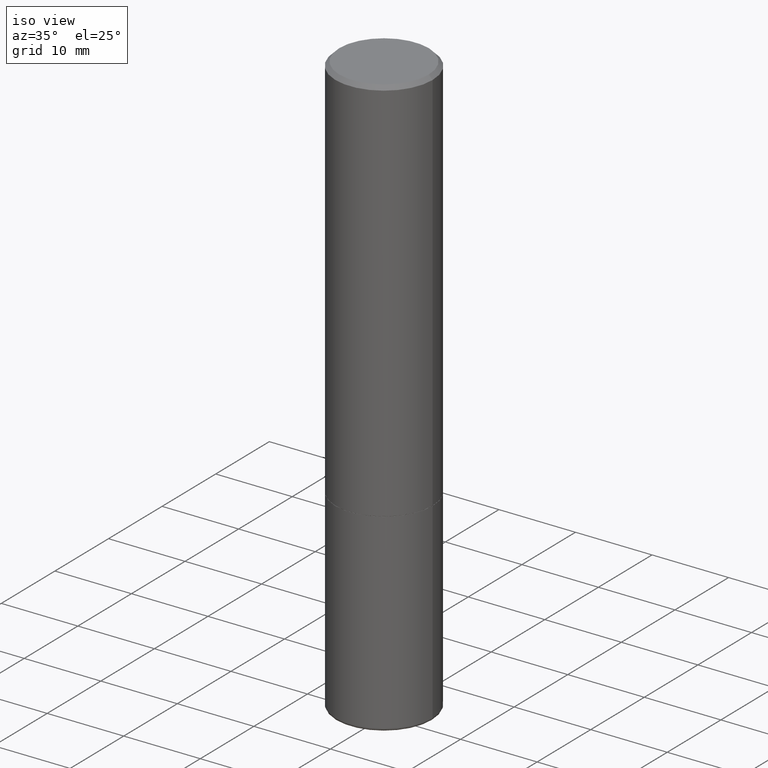
[diagram: clean part render]
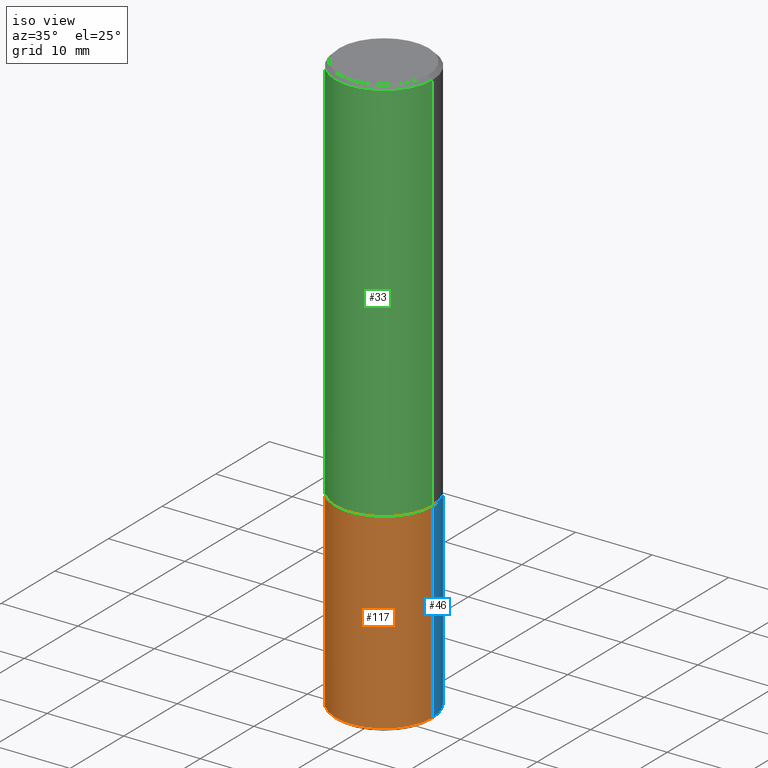
[diagram: same view with three faces highlighted in distinct colors, each labeled with its STEP entity id]
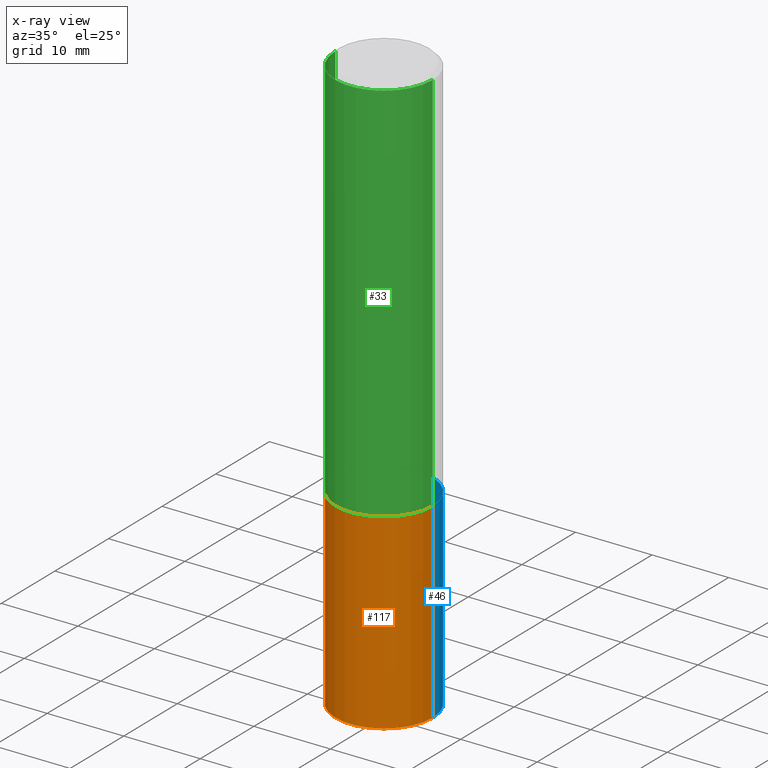
[diagram: x-ray of the same camera — body ghosted, the three highlighted faces saturated]
A machine part, iso view with three faces highlighted in distinct colors.
The next image is the same camera in x-ray (body ghosted, the three faces saturated) — at least one of them is partly hidden behind the body in this view.
Their STEP definitions:

[orange] entity #117 — the highlighted cylindrical surface (partial cylindrical patch) has radius 6.35 mm, axis along (-0, 0, 1).
#2 = CARTESIAN_POINT ( 'NONE',  ( -0.2500000000000000000, 1.776356839400250465E-15, -1.229733772563726445E-29 ) ) ;
#3 = ORIENTED_EDGE ( 'NONE', *, *, #424, .F. ) ;
#5 = VECTOR ( 'NONE', #108, 39.37007874015748143 ) ;
#18 = CARTESIAN_POINT ( 'NONE',  ( 0.000000000000000000, 0.000000000000000000, 0.000000000000000000 ) ) ;
#32 = VERTEX_POINT ( 'NONE', #282 ) ;
#45 = VERTEX_POINT ( 'NONE', #435 ) ;
#60 = CYLINDRICAL_SURFACE ( 'NONE', #219, 0.2500000000000000000 ) ;
#62 = DIRECTION ( 'NONE',  ( 1.000000000000000000, -6.982962677686270655E-15, 0.000000000000000000 ) ) ;
#73 = EDGE_CURVE ( 'NONE', #32, #348, #148, .T. ) ;
#82 = ORIENTED_EDGE ( 'NONE', *, *, #361, .F. ) ;
#104 = VERTEX_POINT ( 'NONE', #396 ) ;
#108 = DIRECTION ( 'NONE',  ( -2.445468806185136877E-29, 3.491481338843145188E-15, 1.000000000000000000 ) ) ;
#117 = ADVANCED_FACE ( 'NONE', ( #399 ), #60, .T. ) ;
#130 = DIRECTION ( 'NONE',  ( -2.445468806185136877E-29, 3.491481338843145188E-15, 1.000000000000000000 ) ) ;
#146 = EDGE_CURVE ( 'NONE', #348, #45, #188, .T. ) ;
#148 = CIRCLE ( 'NONE', #189, 0.2500000000000000000 ) ;
#152 = DIRECTION ( 'NONE',  ( 1.000000000000000000, -6.982962677686266711E-15, 0.000000000000000000 ) ) ;
#188 = LINE ( 'NONE', #259, #5 ) ;
#189 = AXIS2_PLACEMENT_3D ( 'NONE', #327, #240, #62 ) ;
#214 = ORIENTED_EDGE ( 'NONE', *, *, #146, .T. ) ;
#219 = AXIS2_PLACEMENT_3D ( 'NONE', #18, #398, #324 ) ;
#228 = AXIS2_PLACEMENT_3D ( 'NONE', #379, #432, #152 ) ;
#240 = DIRECTION ( 'NONE',  ( -2.445468806185136597E-29, 3.491481338843145583E-15, 1.000000000000000000 ) ) ;
#259 = CARTESIAN_POINT ( 'NONE',  ( 0.2500000000000000000, -1.745740669421566678E-15, 1.219044193948983948E-29 ) ) ;
#282 = CARTESIAN_POINT ( 'NONE',  ( -0.2500000000000000000, -6.926161394753122296E-15, -2.985000571154037718 ) ) ;
#305 = EDGE_LOOP ( 'NONE', ( #82, #337, #214, #3 ) ) ;
#318 = LINE ( 'NONE', #2, #420 ) ;
#324 = DIRECTION ( 'NONE',  ( 1.000000000000000000, -6.982962677686266711E-15, 4.876176775795935793E-29 ) ) ;
#327 = CARTESIAN_POINT ( 'NONE',  ( 7.299725783202014843E-29, -1.042207379062045357E-14, -2.985000571154037718 ) ) ;
#337 = ORIENTED_EDGE ( 'NONE', *, *, #73, .T. ) ;
#341 = CARTESIAN_POINT ( 'NONE',  ( 0.2500000000000000000, -1.216781446004202182E-14, -2.985000571154037718 ) ) ;
#348 = VERTEX_POINT ( 'NONE', #341 ) ;
#361 = EDGE_CURVE ( 'NONE', #32, #104, #318, .T. ) ;
#379 = CARTESIAN_POINT ( 'NONE',  ( 4.890937612370273754E-29, -6.982962677686291954E-15, -2.000000000000000444 ) ) ;
#396 = CARTESIAN_POINT ( 'NONE',  ( -0.2500000000000000000, -6.926161394753122296E-15, -2.000000000000000444 ) ) ;
#398 = DIRECTION ( 'NONE',  ( -2.445468806185136597E-29, 3.491481338843145583E-15, 1.000000000000000000 ) ) ;
#399 = FACE_OUTER_BOUND ( 'NONE', #305, .T. ) ;
#420 = VECTOR ( 'NONE', #130, 39.37007874015748143 ) ;
#424 = EDGE_CURVE ( 'NONE', #104, #45, #439, .T. ) ;
#432 = DIRECTION ( 'NONE',  ( -2.445468806185136597E-29, 3.491481338843145583E-15, 1.000000000000000000 ) ) ;
#435 = CARTESIAN_POINT ( 'NONE',  ( 0.2500000000000000000, -8.728703347107858632E-15, -2.000000000000000444 ) ) ;
#439 = CIRCLE ( 'NONE', #228, 0.2500000000000000000 ) ;

[blue] entity #46 — the highlighted cylindrical surface (partial cylindrical patch) has radius 6.35 mm, axis along (-0, 0, 1).
#2 = CARTESIAN_POINT ( 'NONE',  ( -0.2500000000000000000, 1.776356839400250465E-15, -1.229733772563726445E-29 ) ) ;
#5 = VECTOR ( 'NONE', #108, 39.37007874015748143 ) ;
#11 = AXIS2_PLACEMENT_3D ( 'NONE', #99, #437, #215 ) ;
#14 = EDGE_LOOP ( 'NONE', ( #334, #271, #75, #232 ) ) ;
#32 = VERTEX_POINT ( 'NONE', #282 ) ;
#45 = VERTEX_POINT ( 'NONE', #435 ) ;
#46 = ADVANCED_FACE ( 'NONE', ( #90 ), #94, .T. ) ;
#49 = DIRECTION ( 'NONE',  ( 1.000000000000000000, -6.982962677686270655E-15, 0.000000000000000000 ) ) ;
#51 = AXIS2_PLACEMENT_3D ( 'NONE', #469, #209, #49 ) ;
#70 = CARTESIAN_POINT ( 'NONE',  ( 4.890937612370273754E-29, -6.982962677686291954E-15, -2.000000000000000444 ) ) ;
#75 = ORIENTED_EDGE ( 'NONE', *, *, #191, .F. ) ;
#90 = FACE_OUTER_BOUND ( 'NONE', #14, .T. ) ;
#94 = CYLINDRICAL_SURFACE ( 'NONE', #11, 0.2500000000000000000 ) ;
#99 = CARTESIAN_POINT ( 'NONE',  ( 0.000000000000000000, 0.000000000000000000, 0.000000000000000000 ) ) ;
#104 = VERTEX_POINT ( 'NONE', #396 ) ;
#108 = DIRECTION ( 'NONE',  ( -2.445468806185136877E-29, 3.491481338843145188E-15, 1.000000000000000000 ) ) ;
#130 = DIRECTION ( 'NONE',  ( -2.445468806185136877E-29, 3.491481338843145188E-15, 1.000000000000000000 ) ) ;
#146 = EDGE_CURVE ( 'NONE', #348, #45, #188, .T. ) ;
#178 = AXIS2_PLACEMENT_3D ( 'NONE', #70, #294, #377 ) ;
#188 = LINE ( 'NONE', #259, #5 ) ;
#191 = EDGE_CURVE ( 'NONE', #45, #104, #344, .T. ) ;
#209 = DIRECTION ( 'NONE',  ( -2.445468806185136597E-29, 3.491481338843145583E-15, 1.000000000000000000 ) ) ;
#215 = DIRECTION ( 'NONE',  ( 1.000000000000000000, -6.982962677686266711E-15, 4.876176775795935793E-29 ) ) ;
#232 = ORIENTED_EDGE ( 'NONE', *, *, #146, .F. ) ;
#259 = CARTESIAN_POINT ( 'NONE',  ( 0.2500000000000000000, -1.745740669421566678E-15, 1.219044193948983948E-29 ) ) ;
#271 = ORIENTED_EDGE ( 'NONE', *, *, #361, .T. ) ;
#282 = CARTESIAN_POINT ( 'NONE',  ( -0.2500000000000000000, -6.926161394753122296E-15, -2.985000571154037718 ) ) ;
#294 = DIRECTION ( 'NONE',  ( -2.445468806185136597E-29, 3.491481338843145583E-15, 1.000000000000000000 ) ) ;
#318 = LINE ( 'NONE', #2, #420 ) ;
#334 = ORIENTED_EDGE ( 'NONE', *, *, #378, .T. ) ;
#341 = CARTESIAN_POINT ( 'NONE',  ( 0.2500000000000000000, -1.216781446004202182E-14, -2.985000571154037718 ) ) ;
#344 = CIRCLE ( 'NONE', #178, 0.2500000000000000000 ) ;
#348 = VERTEX_POINT ( 'NONE', #341 ) ;
#361 = EDGE_CURVE ( 'NONE', #32, #104, #318, .T. ) ;
#377 = DIRECTION ( 'NONE',  ( 1.000000000000000000, -6.982962677686266711E-15, 0.000000000000000000 ) ) ;
#378 = EDGE_CURVE ( 'NONE', #348, #32, #401, .T. ) ;
#396 = CARTESIAN_POINT ( 'NONE',  ( -0.2500000000000000000, -6.926161394753122296E-15, -2.000000000000000444 ) ) ;
#401 = CIRCLE ( 'NONE', #51, 0.2500000000000000000 ) ;
#420 = VECTOR ( 'NONE', #130, 39.37007874015748143 ) ;
#435 = CARTESIAN_POINT ( 'NONE',  ( 0.2500000000000000000, -8.728703347107858632E-15, -2.000000000000000444 ) ) ;
#437 = DIRECTION ( 'NONE',  ( -2.445468806185136597E-29, 3.491481338843145583E-15, 1.000000000000000000 ) ) ;
#469 = CARTESIAN_POINT ( 'NONE',  ( 7.299725783202014843E-29, -1.042207379062045357E-14, -2.985000571154037718 ) ) ;

[green] entity #33 — the highlighted cylindrical surface (partial cylindrical patch) has radius 6.35 mm, axis along (-0, 0, 1).
#9 = ORIENTED_EDGE ( 'NONE', *, *, #311, .T. ) ;
#20 = DIRECTION ( 'NONE',  ( 1.000000000000000000, -6.982962677686266711E-15, 4.876176775795935793E-29 ) ) ;
#33 = ADVANCED_FACE ( 'NONE', ( #426 ), #278, .T. ) ;
#39 = DIRECTION ( 'NONE',  ( -2.445468806185136597E-29, 3.491481338843145583E-15, 1.000000000000000000 ) ) ;
#43 = VERTEX_POINT ( 'NONE', #177 ) ;
#48 = ORIENTED_EDGE ( 'NONE', *, *, #290, .T. ) ;
#71 = VERTEX_POINT ( 'NONE', #97 ) ;
#72 = LINE ( 'NONE', #226, #360 ) ;
#97 = CARTESIAN_POINT ( 'NONE',  ( -0.2499999999999993061, 1.675911042644698449E-15, -0.02000000000000010797 ) ) ;
#112 = AXIS2_PLACEMENT_3D ( 'NONE', #260, #486, #443 ) ;
#163 = EDGE_LOOP ( 'NONE', ( #224, #9, #48, #230 ) ) ;
#167 = CARTESIAN_POINT ( 'NONE',  ( 0.2499999999999993061, -1.784954126219741456E-15, -0.02000000000000010797 ) ) ;
#169 = EDGE_CURVE ( 'NONE', #43, #71, #186, .T. ) ;
#171 = CIRCLE ( 'NONE', #448, 0.2500000000000000000 ) ;
#175 = CARTESIAN_POINT ( 'NONE',  ( 0.000000000000000000, 0.000000000000000000, 0.000000000000000000 ) ) ;
#177 = CARTESIAN_POINT ( 'NONE',  ( -0.2500000000000000000, -1.748293572161900530E-15, -1.999000000000000110 ) ) ;
#184 = DIRECTION ( 'NONE',  ( -2.445468806185136877E-29, 3.491481338843145188E-15, 1.000000000000000000 ) ) ;
#186 = LINE ( 'NONE', #291, #233 ) ;
#224 = ORIENTED_EDGE ( 'NONE', *, *, #169, .F. ) ;
#225 = EDGE_CURVE ( 'NONE', #71, #347, #295, .T. ) ;
#226 = CARTESIAN_POINT ( 'NONE',  ( 0.2499999999999996669, -1.745740669421564311E-15, 1.219044193948982267E-29 ) ) ;
#227 = CARTESIAN_POINT ( 'NONE',  ( 4.888492143564088712E-29, -6.979471196347448158E-15, -1.999000000000000110 ) ) ;
#230 = ORIENTED_EDGE ( 'NONE', *, *, #225, .F. ) ;
#233 = VECTOR ( 'NONE', #184, 39.37007874015748143 ) ;
#260 = CARTESIAN_POINT ( 'NONE',  ( 4.890937612370299433E-31, -6.982962677686328587E-17, -0.02000000000000010797 ) ) ;
#269 = VERTEX_POINT ( 'NONE', #450 ) ;
#278 = CYLINDRICAL_SURFACE ( 'NONE', #438, 0.2499999999999996669 ) ;
#290 = EDGE_CURVE ( 'NONE', #269, #347, #72, .T. ) ;
#291 = CARTESIAN_POINT ( 'NONE',  ( -0.2499999999999996669, 1.776356839400248098E-15, -1.229733772563724764E-29 ) ) ;
#295 = CIRCLE ( 'NONE', #112, 0.2499999999999993061 ) ;
#311 = EDGE_CURVE ( 'NONE', #43, #269, #171, .T. ) ;
#340 = DIRECTION ( 'NONE',  ( 1.000000000000000000, -6.982962677686266711E-15, 0.000000000000000000 ) ) ;
#347 = VERTEX_POINT ( 'NONE', #167 ) ;
#359 = DIRECTION ( 'NONE',  ( -2.445468806185136597E-29, 3.491481338843145583E-15, 1.000000000000000000 ) ) ;
#360 = VECTOR ( 'NONE', #373, 39.37007874015748143 ) ;
#373 = DIRECTION ( 'NONE',  ( -2.445468806185136877E-29, 3.491481338843145188E-15, 1.000000000000000000 ) ) ;
#426 = FACE_OUTER_BOUND ( 'NONE', #163, .T. ) ;
#438 = AXIS2_PLACEMENT_3D ( 'NONE', #175, #359, #20 ) ;
#443 = DIRECTION ( 'NONE',  ( 1.000000000000000000, -6.982962677686267499E-15, 0.000000000000000000 ) ) ;
#448 = AXIS2_PLACEMENT_3D ( 'NONE', #227, #39, #340 ) ;
#450 = CARTESIAN_POINT ( 'NONE',  ( 0.2500000000000000000, -8.725211865769015625E-15, -1.999000000000000110 ) ) ;
#486 = DIRECTION ( 'NONE',  ( -2.445468806185136597E-29, 3.491481338843145583E-15, 1.000000000000000000 ) ) ;